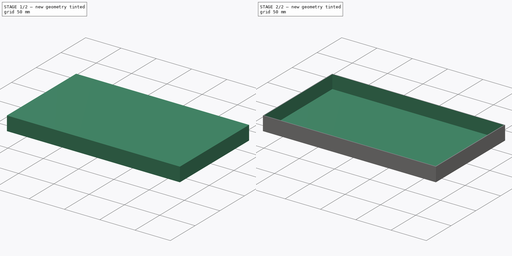
[diagram: build sequence overview — one tinted view per stage of 2, left to right]
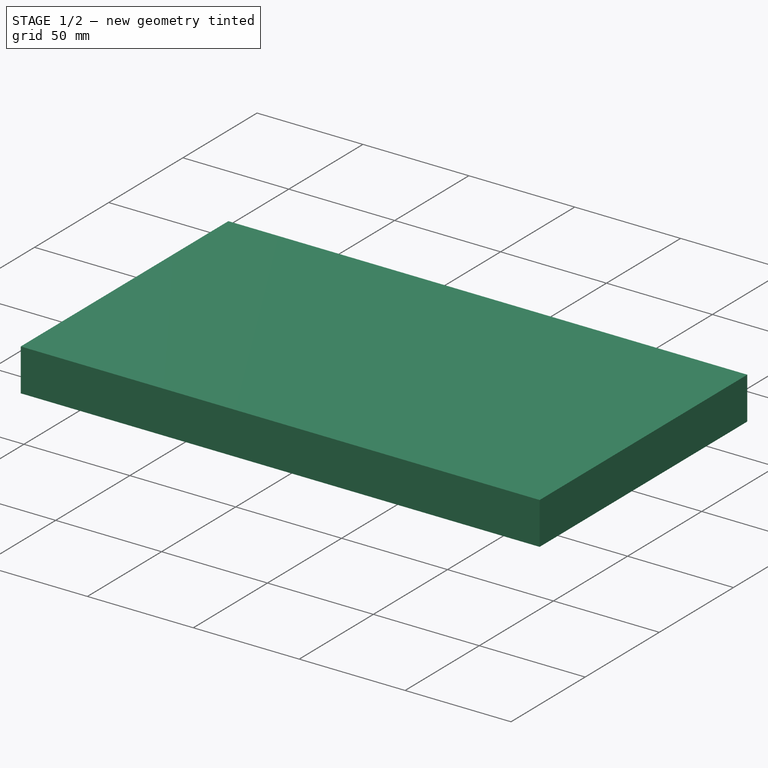
[diagram: stage 1 of 2 — iso view after this stage's code; geometry added in this stage tinted green]
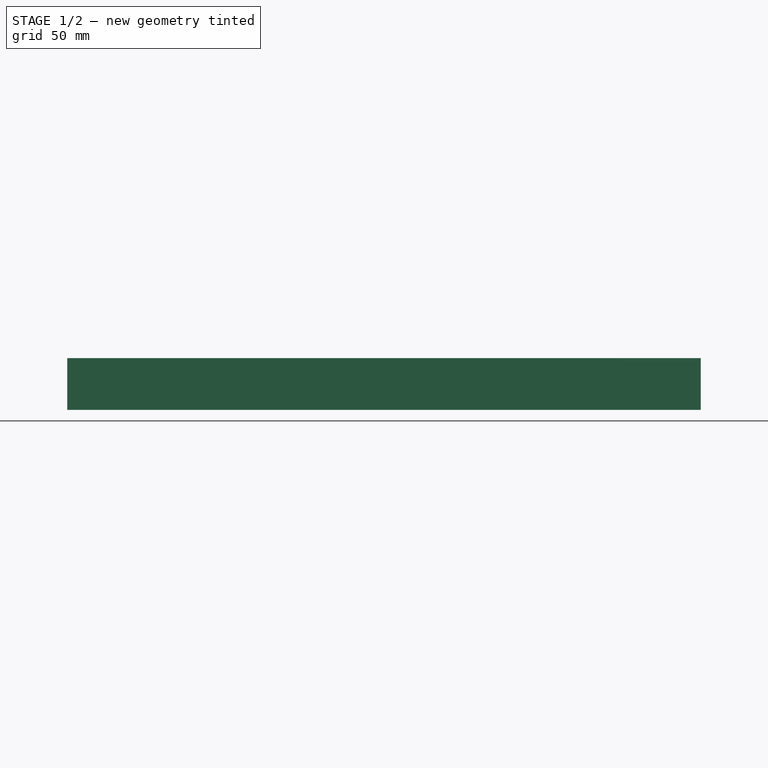
[diagram: stage 1 of 2 — front view after this stage's code; geometry added in this stage tinted green]
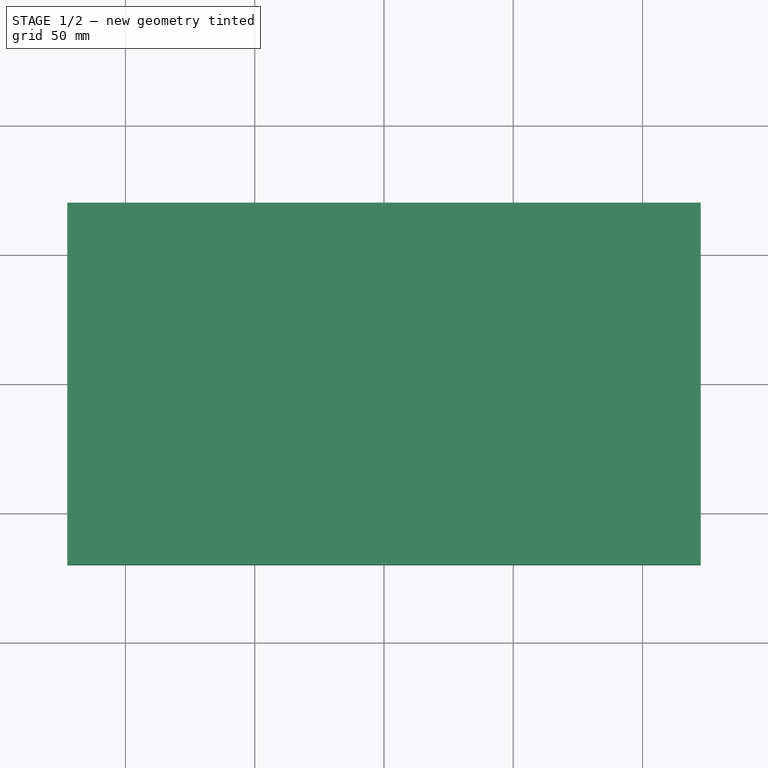
[diagram: stage 1 of 2 — top view after this stage's code; geometry added in this stage tinted green]
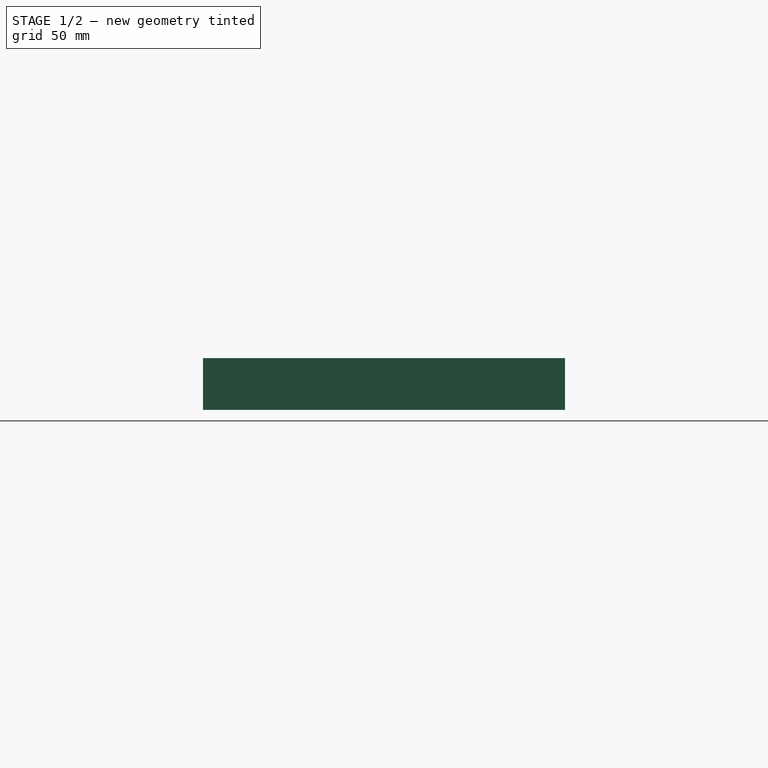
[diagram: stage 1 of 2 — right view after this stage's code; geometry added in this stage tinted green]
FCSTD DOCUMENT  (FreeCAD 1.0R39319 (Git))
Label: julius mech
License: All rights reserved
LicenseURL: https://en.wikipedia.org/wiki/All_rights_reserved
objects: Part::Feature×10, App::Part×10, PartDesign::ShapeBinder×1, Sketcher::SketchObject×1, PartDesign::Pad×1, PartDesign::Thickness×1, PartDesign::Body×1
note: 20 computed .brp shape members not serialized (recipe doc carries the construction recipe); baked Part::Feature solids carry a one-line shape summary decoded from their .brp

FEATURE [Part::Feature] Part__Feature  label="Potentiometer_Bourns_3314J_Vertical"
  shape: bbox 4.5 x 5 x 2.52 mm, 149 faces (baked)
FEATURE [App::Part] Potentiometer_Bourns_3314J_Vertical  label="Potentiometer_Bourns_3314J_Vertical001"
  Group = -> [Part__Feature]
  Origin = -> Origin001
  Placement = pos=(162.65,-73,1.65) rot=(0,0,1;0rad)
FEATURE [Part::Feature] Part__Feature001  label="DIP-16_W7.62mm"
  shape: bbox 7.874 x 19.18 x 6.98 mm, 284 faces (baked)
FEATURE [App::Part] DIP_16_W7_62mm  label="DIP-16_W7.62mm001"
  Group = -> [Part__Feature001]
  Origin = -> Origin002
  Placement = pos=(124.5,-26.01,1.65) rot=(0,0,1;0rad)
FEATURE [Part::Feature] Part__Feature002  label="Aosong_DHT11_5.5x12.0_P2.54mm"
  shape: bbox 5.5 x 12 x 23.5 mm, 289 faces (baked)
FEATURE [App::Part] Aosong_DHT11_5_5x12_0_P2_54mm  label="Aosong_DHT11_5.5x12.0_P2.54mm001"
  Group = -> [Part__Feature002]
  Origin = -> Origin003
  Placement = pos=(44,-122.5,1.65) rot=(0,0,1;0rad)
FEATURE [Part::Feature] Part__Feature003  label="CP_Elec_3x53"
  shape: bbox 4.141 x 4.097 x 5.3 mm, 41 faces (baked)
FEATURE [App::Part] CP_Elec_3x5_3  label="CP_Elec_3x5.3"
  Group = -> [Part__Feature003]
  Origin = -> Origin004
  Placement = pos=(146.5,-146,1.65) rot=(0,0,1;0rad)
FEATURE [Part::Feature] Part__Feature004  label="Potentiometer_Bourns_3314J_Vertical002"
  shape: bbox 4.5 x 5 x 2.52 mm, 149 faces (baked)
FEATURE [App::Part] Potentiometer_Bourns_3314J_Vertical001  label="Potentiometer_Bourns_3314J_Vertical003"
  Group = -> [Part__Feature004]
  Origin = -> Origin005
  Placement = pos=(149.85,-123,1.65) rot=(0,0,1;0rad)
FEATURE [Part::Feature] Part__Feature005  label="Potentiometer_Bourns_3314J_Vertical004"
  shape: bbox 4.5 x 5 x 2.52 mm, 149 faces (baked)
FEATURE [App::Part] Potentiometer_Bourns_3314J_Vertical002  label="Potentiometer_Bourns_3314J_Vertical005"
  Group = -> [Part__Feature005]
  Origin = -> Origin006
  Placement = pos=(201.15,-116.75,1.65) rot=(0,0,1;0rad)
FEATURE [Part::Feature] Part__Feature006  label="L_0402_1005Metric"
  shape: bbox 1 x 0.5 x 0.5 mm, 28 faces (baked)
FEATURE [App::Part] L_0402_1005Metric  label="L_0402_1005Metric001"
  Group = -> [Part__Feature006]
  Origin = -> Origin007
  Placement = pos=(151.33,-144.57,1.65) rot=(0,0,1;0rad)
FEATURE [Part::Feature] Part__Feature007  label="Potentiometer_Bourns_3314J_Vertical006"
  shape: bbox 4.5 x 5 x 2.52 mm, 149 faces (baked)
FEATURE [App::Part] Potentiometer_Bourns_3314J_Vertical003  label="Potentiometer_Bourns_3314J_Vertical007"
  Group = -> [Part__Feature007]
  Origin = -> Origin008
  Placement = pos=(183.35,-140,1.65) rot=(0,0,1;0rad)
FEATURE [Part::Feature] Part__Feature008  label="Fusion032_sp"
  shape: bbox 122 x 44 x 15.2 mm, 214 faces (baked)
FEATURE [App::Part] LCD_016N002L  label="LCD-016N002L"
  Group = -> [Part__Feature008]
  Origin = -> Origin009
  Placement = pos=(107,-60.1425,1.65) rot=(0,0,1;0rad)
FEATURE [Part::Feature] Part__Feature009  label="circuit_PCB"
  shape: bbox 244.5 x 138.8 x 1.6 mm, 82 faces (baked)
FEATURE [App::Part] circuit_1  label="circuit 1"
  Group = -> [Potentiometer_Bourns_3314J_Vertical,DIP_16_W7_62mm,Aosong_DHT11_5_5x12_0_P2_54mm,CP_Elec_3x5_3,Potentiometer_Bourns_3314J_Vertical001,Potentiometer_Bourns_3314J_Vertical002,L_0402_1005Metric,Potentiometer_Bourns_3314J_Vertical003,LCD_016N002L,Part__Feature009]
  Origin = -> Origin010
  Placement = pos=(-146,88,9) rot=(0,0,1;0rad)
FEATURE [PartDesign::ShapeBinder] CopyPart__Feature009
  TraceSupport = false
FEATURE [Sketcher::SketchObject] Sketch
  ArcFitTolerance = 1e-06
  AttachmentSupport = -> [CopyPart__Feature009]
  FullyConstrained = true
  MakeInternals = false
  MapMode = 5
  Placement = pos=(0,0,1.6) rot=(0,0,1;0rad)
  sketch-geometry (5):
    g0: LineSegment StartX=-122.5 StartY=-70 StartZ=0 EndX=122.5 EndY=-70 EndZ=0
    g1: LineSegment StartX=122.5 StartY=-70 StartZ=0 EndX=122.5 EndY=70 EndZ=0
    g2: LineSegment StartX=122.5 StartY=70 StartZ=0 EndX=-122.5 EndY=70 EndZ=0
    g3: LineSegment StartX=-122.5 StartY=70 StartZ=0 EndX=-122.5 EndY=-70 EndZ=0
    g4: GeomPoint [constr] X=0 Y=0 Z=0
  constraints (12):
    c: Coincident(g0,g1)
    c: Coincident(g1,g2)
    c: Coincident(g2,g3)
    c: Coincident(g3,g0)
    c: Horizontal(g0)
    c: Horizontal(g2)
    c: Vertical(g1)
    c: Vertical(g3)
    c: Symmetric(g2,g0,g4)
    c: Distance(g1,g3) = 245
    c: Distance(g0,g2) = 140
    c: Coincident(g4,g-1)
FEATURE [PartDesign::Pad] Pad
  Direction = (0,0,1)
  Length = 20
  Length2 = 10
  Profile = -> Sketch
  ReferenceAxis = -> Sketch [N_Axis]
  Refine = true
  Suppressed = false
  Type = 0
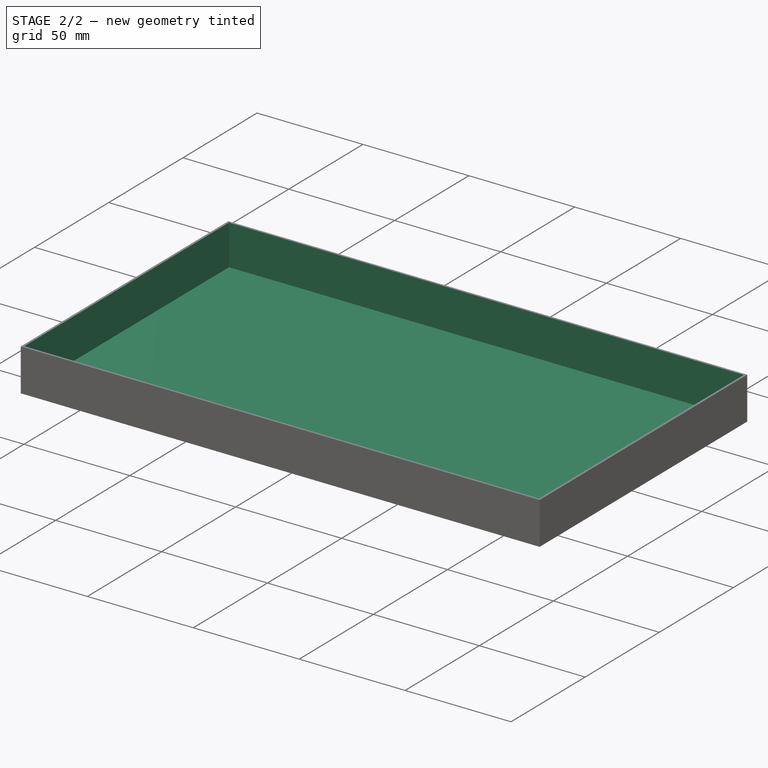
[diagram: stage 2 of 2 — iso view after this stage's code; geometry added in this stage tinted green]
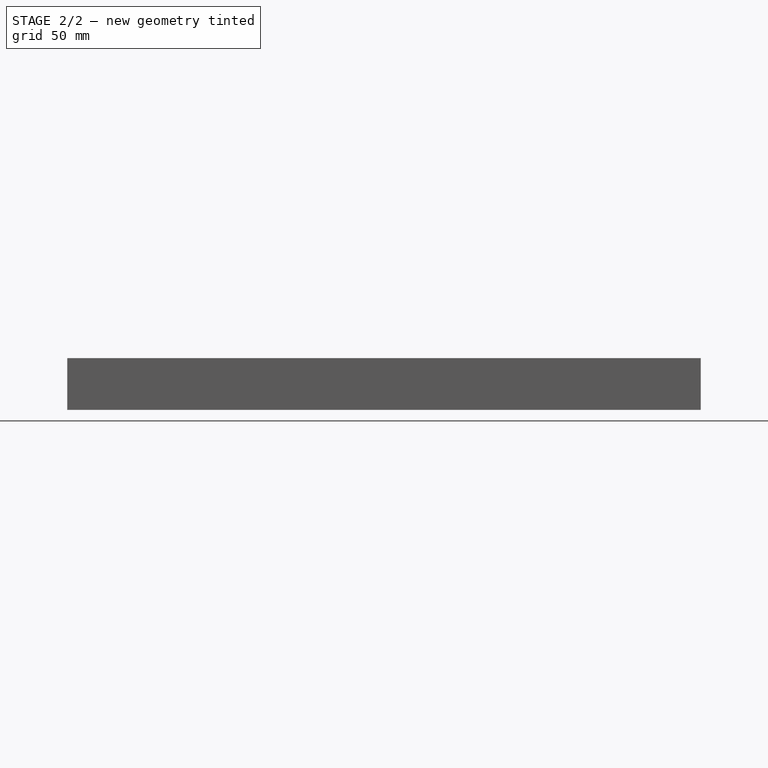
[diagram: stage 2 of 2 — front view after this stage's code; geometry added in this stage tinted green]
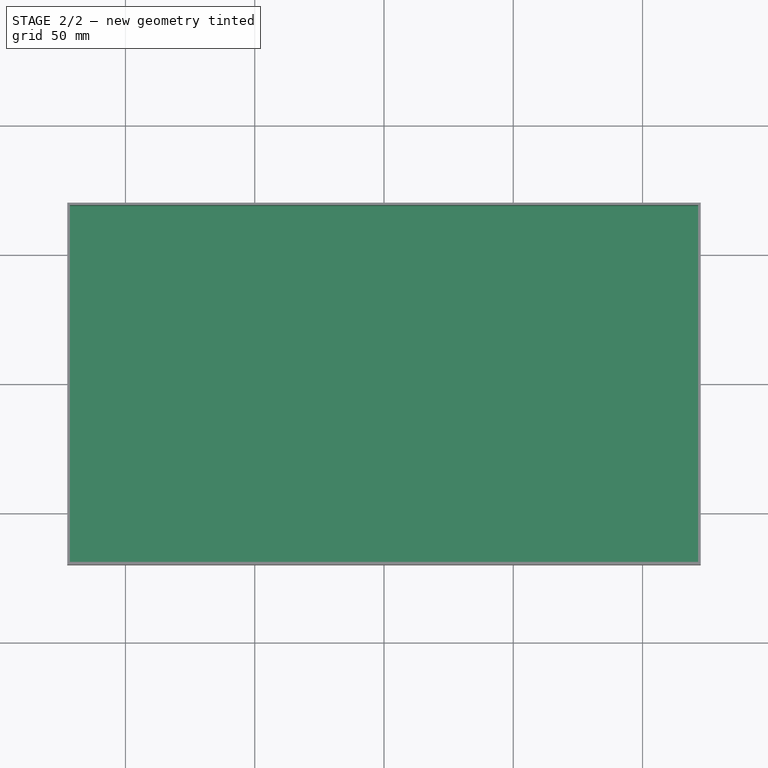
[diagram: stage 2 of 2 — top view after this stage's code; geometry added in this stage tinted green]
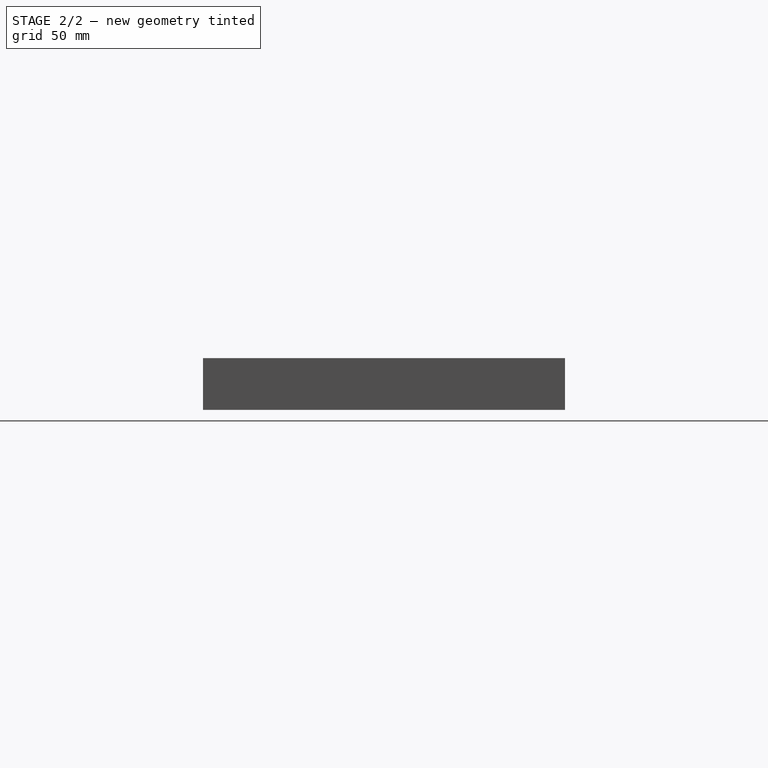
[diagram: stage 2 of 2 — right view after this stage's code; geometry added in this stage tinted green]
FEATURE [PartDesign::Thickness] Thickness
  Base = -> Pad [Face6]
  BaseFeature = -> Pad
  Intersection = false
  Join = 0
  Mode = 0
  Refine = true
  Reversed = true
  SupportTransform = false
  Suppressed = false
  Value = 1
FEATURE [PartDesign::Body] Body
  AllowCompound = false
  Group = -> [CopyPart__Feature009,Sketch,Pad,Thickness]
  Origin = -> Origin
  Tip = -> Thickness
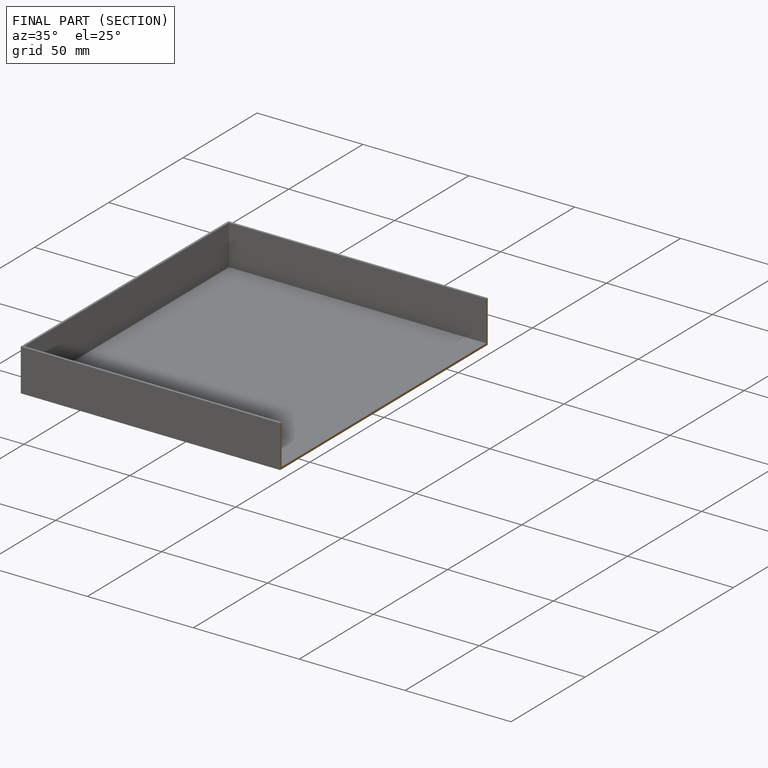
[diagram: finished part — half-section view (interior)]
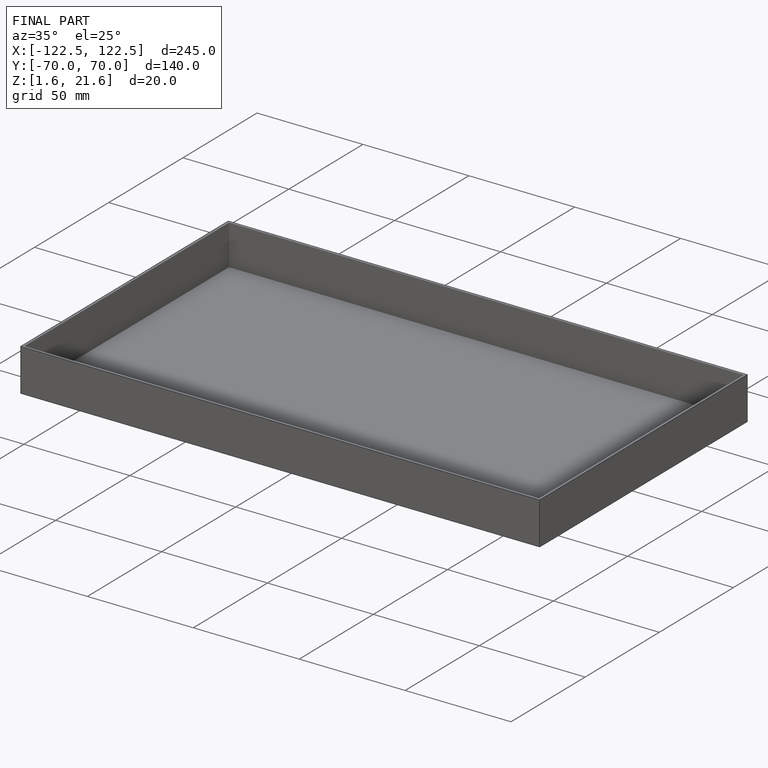
[diagram: finished part — iso view with bounding-box wireframe]
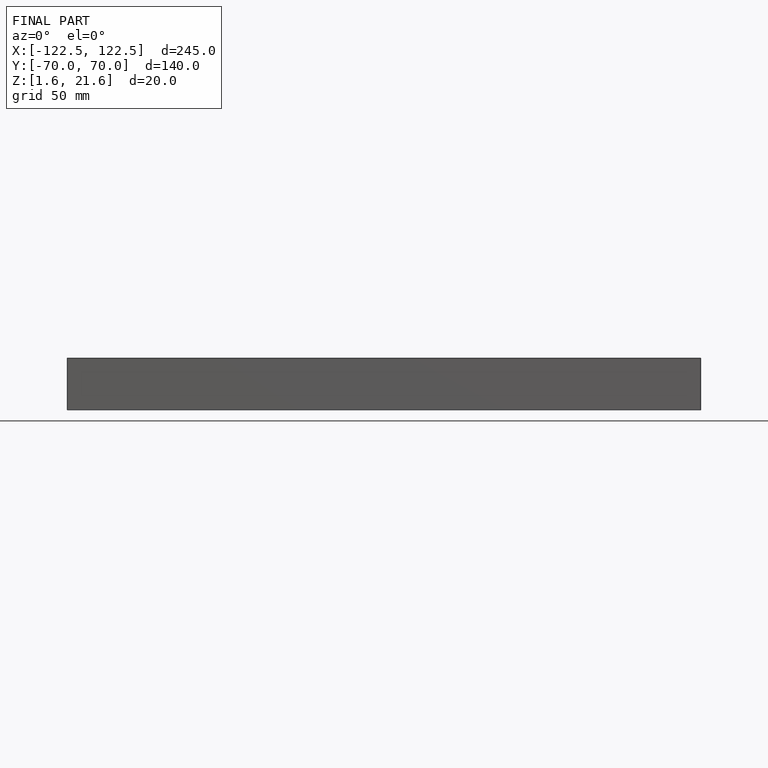
[diagram: finished part — front view with bounding-box wireframe]
